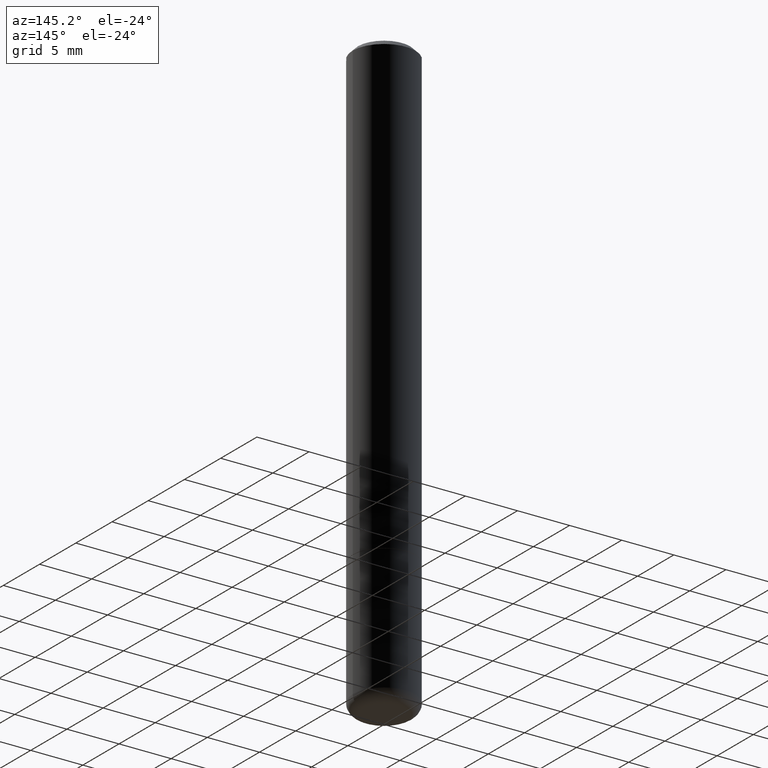
[diagram: clean part render]
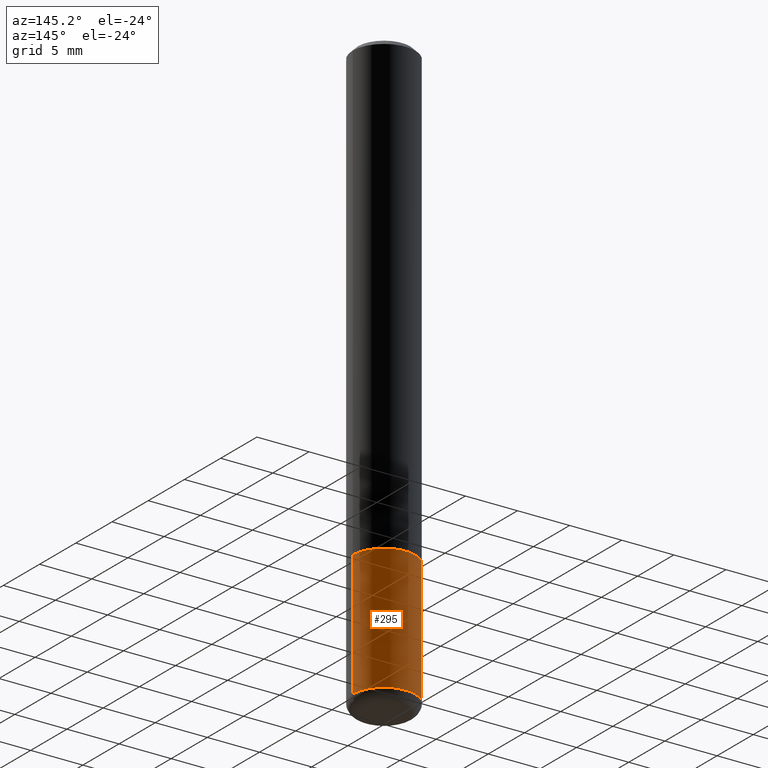
[diagram: same view with one face highlighted and labeled with its STEP entity id]
A machine part, auxiliary view. The second image highlights one B-rep face of the part: STEP entity #295.
In plain terms, the highlighted cylindrical surface (partial cylindrical patch) has radius 2.9997 mm, axis along (-0, 0, 1).
Its self-contained STEP definition (entity closure, byte-faithful):
#10 = DIRECTION ( 'NONE',  ( 1.000000000000000000, -6.982962677686265133E-15, 0.000000000000000000 ) ) ;
#13 = EDGE_CURVE ( 'NONE', #407, #301, #51, .T. ) ;
#40 = CARTESIAN_POINT ( 'NONE',  ( 0.000000000000000000, 0.000000000000000000, 0.000000000000000000 ) ) ;
#47 = EDGE_LOOP ( 'NONE', ( #240, #336, #312, #335 ) ) ;
#51 = LINE ( 'NONE', #155, #333 ) ;
#63 = EDGE_CURVE ( 'NONE', #242, #407, #101, .T. ) ;
#67 = CARTESIAN_POINT ( 'NONE',  ( 0.1180999999999999966, -8.246878922347480654E-16, 5.758764772215000440E-30 ) ) ;
#68 = CARTESIAN_POINT ( 'NONE',  ( 4.236285612954512392E-29, -6.048293123277981078E-15, -1.732299999999999951 ) ) ;
#74 = FACE_OUTER_BOUND ( 'NONE', #47, .T. ) ;
#81 = VERTEX_POINT ( 'NONE', #357 ) ;
#86 = EDGE_CURVE ( 'NONE', #242, #81, #388, .T. ) ;
#101 = CIRCLE ( 'NONE', #172, 0.1180999999999999966 ) ;
#115 = AXIS2_PLACEMENT_3D ( 'NONE', #40, #399, #395 ) ;
#135 = CARTESIAN_POINT ( 'NONE',  ( -0.1180999999999998995, -6.858517936814806506E-15, -2.204700000000000326 ) ) ;
#155 = CARTESIAN_POINT ( 'NONE',  ( -0.1180999999999999966, 8.391509709326782957E-16, -5.809262341591043784E-30 ) ) ;
#158 = CARTESIAN_POINT ( 'NONE',  ( 5.391525076996371277E-29, -7.697668907747483125E-15, -2.204700000000000326 ) ) ;
#172 = AXIS2_PLACEMENT_3D ( 'NONE', #158, #281, #282 ) ;
#178 = DIRECTION ( 'NONE',  ( -2.445468806185136877E-29, 3.491481338843145188E-15, 1.000000000000000000 ) ) ;
#186 = DIRECTION ( 'NONE',  ( -2.445468806185136877E-29, 3.491481338843145188E-15, 1.000000000000000000 ) ) ;
#240 = ORIENTED_EDGE ( 'NONE', *, *, #63, .T. ) ;
#242 = VERTEX_POINT ( 'NONE', #284 ) ;
#247 = AXIS2_PLACEMENT_3D ( 'NONE', #68, #298, #10 ) ;
#271 = CIRCLE ( 'NONE', #247, 0.1180999999999999966 ) ;
#281 = DIRECTION ( 'NONE',  ( -2.445468806185136597E-29, 3.491481338843145583E-15, 1.000000000000000000 ) ) ;
#282 = DIRECTION ( 'NONE',  ( 1.000000000000000000, -6.982962677686265133E-15, 0.000000000000000000 ) ) ;
#284 = CARTESIAN_POINT ( 'NONE',  ( 0.1180999999999998995, -8.522356799982231388E-15, -2.204700000000000326 ) ) ;
#295 = ADVANCED_FACE ( 'NONE', ( #74 ), #329, .T. ) ;
#298 = DIRECTION ( 'NONE',  ( -2.445468806185136597E-29, 3.491481338843145583E-15, 1.000000000000000000 ) ) ;
#301 = VERTEX_POINT ( 'NONE', #323 ) ;
#312 = ORIENTED_EDGE ( 'NONE', *, *, #358, .F. ) ;
#323 = CARTESIAN_POINT ( 'NONE',  ( -0.1180999999999999966, -6.033830044580054299E-15, -1.732299999999999951 ) ) ;
#329 = CYLINDRICAL_SURFACE ( 'NONE', #115, 0.1180999999999999966 ) ;
#333 = VECTOR ( 'NONE', #178, 39.37007874015748143 ) ;
#335 = ORIENTED_EDGE ( 'NONE', *, *, #86, .F. ) ;
#336 = ORIENTED_EDGE ( 'NONE', *, *, #13, .T. ) ;
#357 = CARTESIAN_POINT ( 'NONE',  ( 0.1180999999999999966, -6.872981015512729341E-15, -1.732299999999999951 ) ) ;
#358 = EDGE_CURVE ( 'NONE', #81, #301, #271, .T. ) ;
#387 = VECTOR ( 'NONE', #186, 39.37007874015748143 ) ;
#388 = LINE ( 'NONE', #67, #387 ) ;
#395 = DIRECTION ( 'NONE',  ( 1.000000000000000000, -6.982962677686266711E-15, 4.876176775795936353E-29 ) ) ;
#399 = DIRECTION ( 'NONE',  ( -2.445468806185136597E-29, 3.491481338843145583E-15, 1.000000000000000000 ) ) ;
#407 = VERTEX_POINT ( 'NONE', #135 ) ;